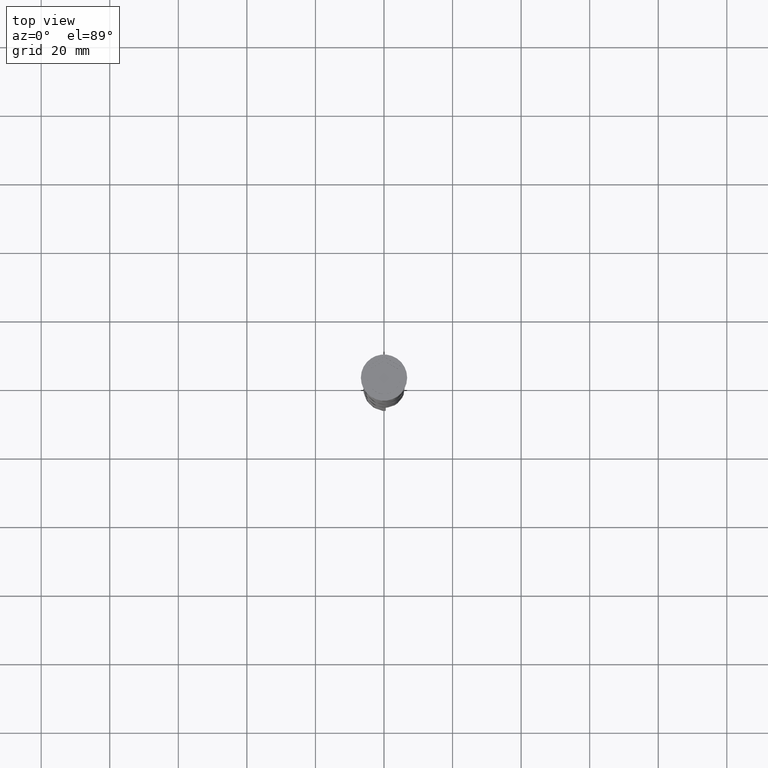
[diagram: clean part render]
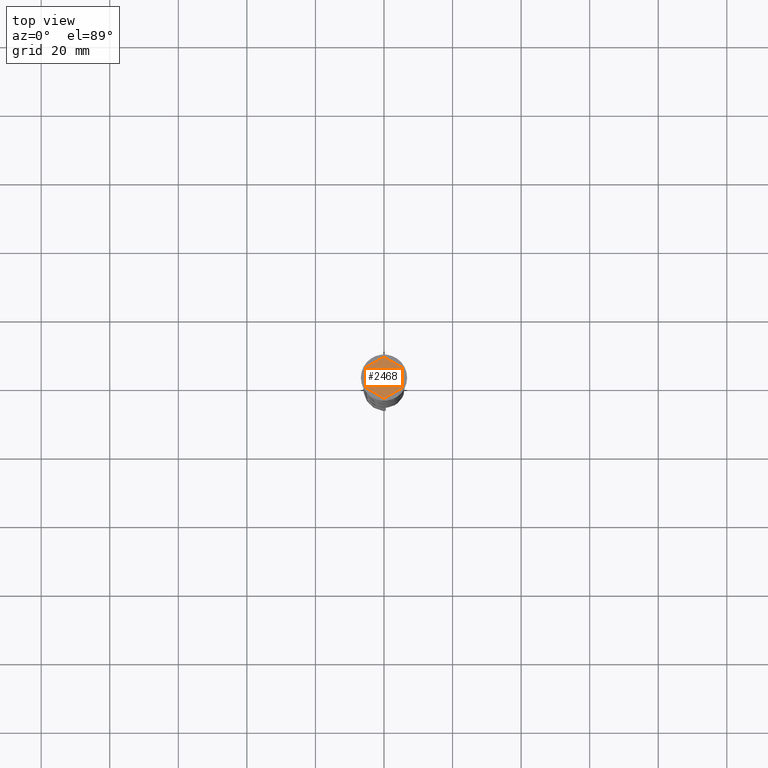
[diagram: same view with one face highlighted and labeled with its STEP entity id]
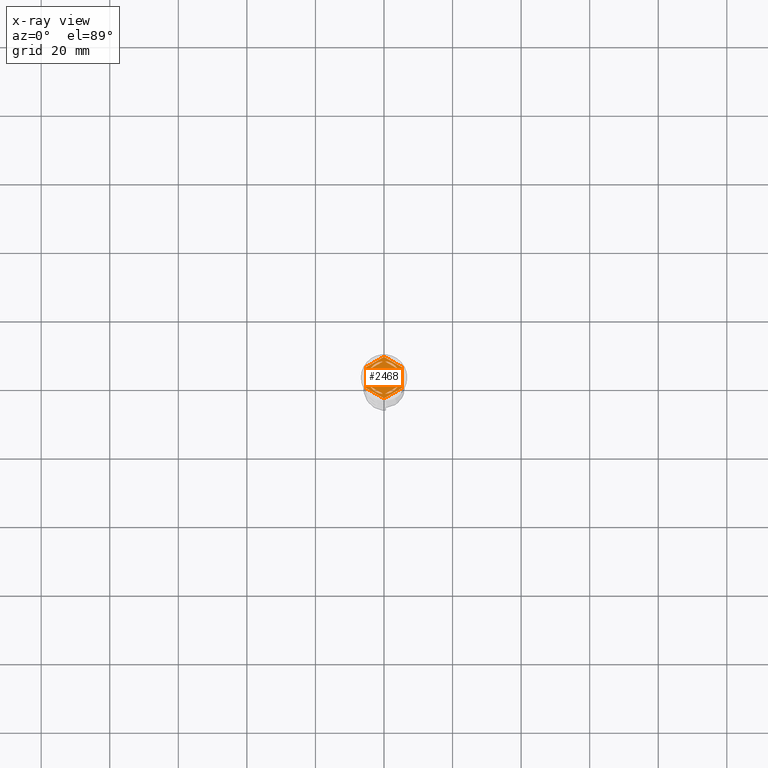
[diagram: x-ray of the same camera — body ghosted, the highlighted face saturated]
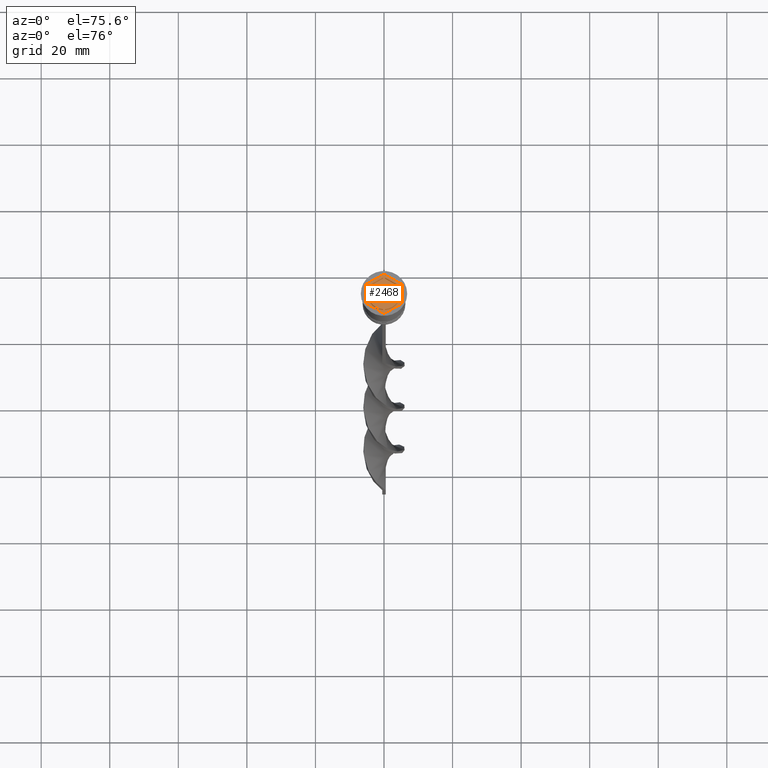
[diagram: same view with one face highlighted and labeled with its STEP entity id]
A machine part, top view. The second image highlights one B-rep face of the part: STEP entity #2468.
The next image is the same camera in x-ray: the body ghosted, the highlighted face saturated — about 0% of this face is hidden behind the body in this view.
A second angle (auxiliary view) of the same face is appended — the face is thin or edge-on in the first view.
In plain terms, the highlighted planar face has unit normal (0, 0, 1).
Its self-contained STEP definition (entity closure, byte-faithful):
#28 = DIRECTION ( 'NONE',  ( 1.000000000000000000, 0.000000000000000000, 0.000000000000000000 ) ) ;
#82 = CARTESIAN_POINT ( 'NONE',  ( 8.729740977282959667E-16, -6.062177826491071286, -1.000000000000000000 ) ) ;
#101 = DIRECTION ( 'NONE',  ( -0.8660254037844385966, 0.4999999999999998890, 0.000000000000000000 ) ) ;
#127 = FACE_BOUND ( 'NONE', #1164, .T. ) ;
#140 = VERTEX_POINT ( 'NONE', #2876 ) ;
#142 = CARTESIAN_POINT ( 'NONE',  ( -8.673617379884035472E-16, -4.907477288111819824, -1.000000000000000888 ) ) ;
#145 = EDGE_CURVE ( 'NONE', #1445, #3798, #3281, .T. ) ;
#157 = FACE_BOUND ( 'NONE', #1147, .T. ) ;
#174 = VERTEX_POINT ( 'NONE', #786 ) ;
#178 = VERTEX_POINT ( 'NONE', #3441 ) ;
#210 = EDGE_CURVE ( 'NONE', #1274, #1460, #2585, .T. ) ;
#228 = VECTOR ( 'NONE', #573, 1000.000000000000000 ) ;
#234 = AXIS2_PLACEMENT_3D ( 'NONE', #3110, #428, #2804 ) ;
#247 = EDGE_CURVE ( 'NONE', #1434, #1192, #666, .T. ) ;
#254 = EDGE_LOOP ( 'NONE', ( #3335, #1889 ) ) ;
#293 = VECTOR ( 'NONE', #2788, 1000.000000000000000 ) ;
#309 = ORIENTED_EDGE ( 'NONE', *, *, #2842, .F. ) ;
#312 = ORIENTED_EDGE ( 'NONE', *, *, #3673, .T. ) ;
#320 = CARTESIAN_POINT ( 'NONE',  ( 0.000000000000000000, 6.062177826491072175, -1.000000000000000000 ) ) ;
#353 = CARTESIAN_POINT ( 'NONE',  ( 0.2878826929126150347, -4.741268137863686505, -1.000000000000000888 ) ) ;
#394 = ORIENTED_EDGE ( 'NONE', *, *, #856, .T. ) ;
#401 = CARTESIAN_POINT ( 'NONE',  ( 0.000000000000000000, 0.000000000000000000, -1.000000000000000000 ) ) ;
#410 = CIRCLE ( 'NONE', #3600, 4.750000000000000888 ) ;
#416 = EDGE_CURVE ( 'NONE', #515, #2956, #2086, .T. ) ;
#428 = DIRECTION ( 'NONE',  ( 0.000000000000000000, 0.000000000000000000, 1.000000000000000000 ) ) ;
#476 = LINE ( 'NONE', #2161, #1514 ) ;
#486 = LINE ( 'NONE', #142, #293 ) ;
#492 = CARTESIAN_POINT ( 'NONE',  ( 0.000000000000000000, 6.062177826491072175, -1.000000000000000000 ) ) ;
#515 = VERTEX_POINT ( 'NONE', #2039 ) ;
#566 = VERTEX_POINT ( 'NONE', #2481 ) ;
#573 = DIRECTION ( 'NONE',  ( -0.8660254037844385966, 0.5000000000000001110, 0.000000000000000000 ) ) ;
#590 = DIRECTION ( 'NONE',  ( -1.767428939690775055E-16, -1.000000000000000000, 0.000000000000000000 ) ) ;
#606 = ORIENTED_EDGE ( 'NONE', *, *, #416, .T. ) ;
#666 = CIRCLE ( 'NONE', #2973, 4.750000000000000888 ) ;
#668 = EDGE_CURVE ( 'NONE', #2956, #1262, #476, .T. ) ;
#669 = ORIENTED_EDGE ( 'NONE', *, *, #1426, .F. ) ;
#729 = AXIS2_PLACEMENT_3D ( 'NONE', #3501, #2934, #2952 ) ;
#772 = AXIS2_PLACEMENT_3D ( 'NONE', #932, #2653, #28 ) ;
#781 = DIRECTION ( 'NONE',  ( 1.000000000000000000, 0.000000000000000000, 0.000000000000000000 ) ) ;
#786 = CARTESIAN_POINT ( 'NONE',  ( 0.2878826929126145906, 4.741268137863685617, -1.000000000000000888 ) ) ;
#826 = DIRECTION ( 'NONE',  ( 0.000000000000000000, -1.000000000000000000, 0.000000000000000000 ) ) ;
#856 = EDGE_CURVE ( 'NONE', #140, #566, #3711, .T. ) ;
#900 = CIRCLE ( 'NONE', #772, 4.750000000000000888 ) ;
#902 = VERTEX_POINT ( 'NONE', #3551 ) ;
#932 = CARTESIAN_POINT ( 'NONE',  ( 0.000000000000000000, 0.000000000000000000, -1.000000000000000000 ) ) ;
#966 = AXIS2_PLACEMENT_3D ( 'NONE', #1650, #2504, #781 ) ;
#991 = DIRECTION ( 'NONE',  ( 0.000000000000000000, 0.000000000000000000, 1.000000000000000000 ) ) ;
#1029 = VECTOR ( 'NONE', #1073, 1000.000000000000000 ) ;
#1033 = CARTESIAN_POINT ( 'NONE',  ( 0.000000000000000000, 0.000000000000000000, -1.000000000000000000 ) ) ;
#1055 = LINE ( 'NONE', #492, #2316 ) ;
#1073 = DIRECTION ( 'NONE',  ( 0.8660254037844387076, -0.4999999999999998335, 0.000000000000000000 ) ) ;
#1075 = CARTESIAN_POINT ( 'NONE',  ( 0.000000000000000000, 0.000000000000000000, -1.000000000000000000 ) ) ;
#1089 = LINE ( 'NONE', #3382, #1651 ) ;
#1097 = DIRECTION ( 'NONE',  ( 0.000000000000000000, 0.000000000000000000, 1.000000000000000000 ) ) ;
#1140 = EDGE_LOOP ( 'NONE', ( #669, #1284, #309 ) ) ;
#1147 = EDGE_LOOP ( 'NONE', ( #2290, #2116 ) ) ;
#1155 = DIRECTION ( 'NONE',  ( 1.000000000000000000, 0.000000000000000000, 0.000000000000000000 ) ) ;
#1164 = EDGE_LOOP ( 'NONE', ( #2839, #1805 ) ) ;
#1168 = CARTESIAN_POINT ( 'NONE',  ( 4.249999999999999112, 2.121320343559644162, -1.000000000000000888 ) ) ;
#1173 = DIRECTION ( 'NONE',  ( 0.000000000000000000, 1.000000000000000000, 0.000000000000000000 ) ) ;
#1192 = VERTEX_POINT ( 'NONE', #2016 ) ;
#1262 = VERTEX_POINT ( 'NONE', #320 ) ;
#1274 = VERTEX_POINT ( 'NONE', #1450 ) ;
#1284 = ORIENTED_EDGE ( 'NONE', *, *, #1312, .F. ) ;
#1299 = FACE_BOUND ( 'NONE', #254, .T. ) ;
#1304 = DIRECTION ( 'NONE',  ( 0.000000000000000000, 0.000000000000000000, 1.000000000000000000 ) ) ;
#1312 = EDGE_CURVE ( 'NONE', #1830, #1632, #1840, .T. ) ;
#1333 = CARTESIAN_POINT ( 'NONE',  ( 4.249999999999999112, -2.121320343559645938, -1.000000000000000888 ) ) ;
#1368 = CARTESIAN_POINT ( 'NONE',  ( 5.250000000000000888, 3.031088913245536087, -1.000000000000000000 ) ) ;
#1391 = CIRCLE ( 'NONE', #966, 4.750000000000000888 ) ;
#1400 = CARTESIAN_POINT ( 'NONE',  ( -0.2878826929126160894, 4.741268137863686505, -1.000000000000000888 ) ) ;
#1418 = DIRECTION ( 'NONE',  ( -0.8660254037844385966, -0.5000000000000000000, 0.000000000000000000 ) ) ;
#1426 = EDGE_CURVE ( 'NONE', #1632, #902, #900, .T. ) ;
#1434 = VERTEX_POINT ( 'NONE', #353 ) ;
#1445 = VERTEX_POINT ( 'NONE', #1333 ) ;
#1450 = CARTESIAN_POINT ( 'NONE',  ( -0.2878826929126160894, -4.741268137863686505, -1.000000000000000888 ) ) ;
#1460 = VERTEX_POINT ( 'NONE', #3462 ) ;
#1490 = EDGE_CURVE ( 'NONE', #174, #3001, #3686, .T. ) ;
#1507 = EDGE_LOOP ( 'NONE', ( #1985, #3185 ) ) ;
#1514 = VECTOR ( 'NONE', #101, 1000.000000000000227 ) ;
#1546 = CARTESIAN_POINT ( 'NONE',  ( 4.336808689942017736E-16, 4.907477288111819824, -1.000000000000000888 ) ) ;
#1570 = EDGE_LOOP ( 'NONE', ( #3304, #2756 ) ) ;
#1619 = FACE_BOUND ( 'NONE', #1570, .T. ) ;
#1632 = VERTEX_POINT ( 'NONE', #3565 ) ;
#1635 = FACE_OUTER_BOUND ( 'NONE', #1719, .T. ) ;
#1650 = CARTESIAN_POINT ( 'NONE',  ( 0.000000000000000000, 0.000000000000000000, -1.000000000000000000 ) ) ;
#1651 = VECTOR ( 'NONE', #1726, 1000.000000000000000 ) ;
#1702 = EDGE_CURVE ( 'NONE', #1460, #1274, #1391, .T. ) ;
#1719 = EDGE_LOOP ( 'NONE', ( #3033, #1735, #394, #312, #3511, #606 ) ) ;
#1726 = DIRECTION ( 'NONE',  ( 0.8660254037844387076, -0.4999999999999998335, 0.000000000000000000 ) ) ;
#1727 = EDGE_CURVE ( 'NONE', #3001, #174, #410, .T. ) ;
#1731 = CARTESIAN_POINT ( 'NONE',  ( -4.250000000000000000, -2.453738644055909912, -1.000000000000000888 ) ) ;
#1735 = ORIENTED_EDGE ( 'NONE', *, *, #3553, .T. ) ;
#1805 = ORIENTED_EDGE ( 'NONE', *, *, #1490, .F. ) ;
#1829 = LINE ( 'NONE', #1546, #3410 ) ;
#1830 = VERTEX_POINT ( 'NONE', #2008 ) ;
#1840 = LINE ( 'NONE', #2098, #2425 ) ;
#1889 = ORIENTED_EDGE ( 'NONE', *, *, #210, .F. ) ;
#1985 = ORIENTED_EDGE ( 'NONE', *, *, #145, .F. ) ;
#2002 = VECTOR ( 'NONE', #590, 1000.000000000000000 ) ;
#2005 = CARTESIAN_POINT ( 'NONE',  ( 0.000000000000000000, 0.000000000000000000, -1.000000000000000000 ) ) ;
#2008 = CARTESIAN_POINT ( 'NONE',  ( -4.250000000000000000, -2.121320343559643717, -1.000000000000000888 ) ) ;
#2016 = CARTESIAN_POINT ( 'NONE',  ( 3.962117307087384521, -2.619947794304042787, -1.000000000000000888 ) ) ;
#2039 = CARTESIAN_POINT ( 'NONE',  ( 5.250000000000000888, -3.031088913245536087, -1.000000000000000000 ) ) ;
#2071 = DIRECTION ( 'NONE',  ( 0.8660254037844385966, 0.5000000000000001110, -0.000000000000000000 ) ) ;
#2086 = LINE ( 'NONE', #3275, #2125 ) ;
#2090 = VERTEX_POINT ( 'NONE', #2338 ) ;
#2096 = EDGE_CURVE ( 'NONE', #3633, #2090, #3100, .T. ) ;
#2098 = CARTESIAN_POINT ( 'NONE',  ( -4.250000000000000000, 2.453738644055909468, -1.000000000000000888 ) ) ;
#2116 = ORIENTED_EDGE ( 'NONE', *, *, #2866, .F. ) ;
#2125 = VECTOR ( 'NONE', #1173, 1000.000000000000000 ) ;
#2161 = CARTESIAN_POINT ( 'NONE',  ( 5.250000000000000888, 3.031088913245536087, -1.000000000000000000 ) ) ;
#2179 = DIRECTION ( 'NONE',  ( 1.000000000000000000, 0.000000000000000000, 0.000000000000000000 ) ) ;
#2276 = CARTESIAN_POINT ( 'NONE',  ( 3.962117307087384521, 2.619947794304043232, -1.000000000000000888 ) ) ;
#2290 = ORIENTED_EDGE ( 'NONE', *, *, #2096, .F. ) ;
#2316 = VECTOR ( 'NONE', #1418, 1000.000000000000227 ) ;
#2338 = CARTESIAN_POINT ( 'NONE',  ( -3.962117307087385409, 2.619947794304041899, -1.000000000000000888 ) ) ;
#2374 = LINE ( 'NONE', #82, #2438 ) ;
#2425 = VECTOR ( 'NONE', #3271, 1000.000000000000000 ) ;
#2438 = VECTOR ( 'NONE', #2622, 1000.000000000000114 ) ;
#2468 = ADVANCED_FACE ( 'NONE', ( #127, #3675, #1619, #1299, #3056, #157, #1635 ), #3072, .T. ) ;
#2481 = CARTESIAN_POINT ( 'NONE',  ( -5.250000000000000888, -3.031088913245536087, -1.000000000000000000 ) ) ;
#2504 = DIRECTION ( 'NONE',  ( 0.000000000000000000, 0.000000000000000000, 1.000000000000000000 ) ) ;
#2527 = EDGE_CURVE ( 'NONE', #1192, #1434, #486, .T. ) ;
#2585 = LINE ( 'NONE', #1731, #228 ) ;
#2622 = DIRECTION ( 'NONE',  ( 0.8660254037844385966, 0.4999999999999999445, 0.000000000000000000 ) ) ;
#2653 = DIRECTION ( 'NONE',  ( 0.000000000000000000, 0.000000000000000000, 1.000000000000000000 ) ) ;
#2675 = VECTOR ( 'NONE', #826, 1000.000000000000000 ) ;
#2756 = ORIENTED_EDGE ( 'NONE', *, *, #2527, .F. ) ;
#2788 = DIRECTION ( 'NONE',  ( -0.8660254037844387076, -0.4999999999999999445, 0.000000000000000000 ) ) ;
#2804 = DIRECTION ( 'NONE',  ( 1.000000000000000000, 0.000000000000000000, -0.000000000000000000 ) ) ;
#2839 = ORIENTED_EDGE ( 'NONE', *, *, #1727, .F. ) ;
#2842 = EDGE_CURVE ( 'NONE', #902, #1830, #2986, .T. ) ;
#2861 = AXIS2_PLACEMENT_3D ( 'NONE', #1075, #3458, #1155 ) ;
#2866 = EDGE_CURVE ( 'NONE', #2090, #3633, #1829, .T. ) ;
#2876 = CARTESIAN_POINT ( 'NONE',  ( -5.250000000000000888, 3.031088913245535643, -1.000000000000000000 ) ) ;
#2934 = DIRECTION ( 'NONE',  ( 0.000000000000000000, 0.000000000000000000, 1.000000000000000000 ) ) ;
#2952 = DIRECTION ( 'NONE',  ( 1.000000000000000000, 0.000000000000000000, 0.000000000000000000 ) ) ;
#2956 = VERTEX_POINT ( 'NONE', #1368 ) ;
#2973 = AXIS2_PLACEMENT_3D ( 'NONE', #2005, #1097, #3180 ) ;
#2986 = CIRCLE ( 'NONE', #729, 4.750000000000000888 ) ;
#3001 = VERTEX_POINT ( 'NONE', #2276 ) ;
#3033 = ORIENTED_EDGE ( 'NONE', *, *, #668, .T. ) ;
#3035 = DIRECTION ( 'NONE',  ( 1.000000000000000000, 0.000000000000000000, 0.000000000000000000 ) ) ;
#3056 = FACE_BOUND ( 'NONE', #1140, .T. ) ;
#3072 = PLANE ( 'NONE',  #234 ) ;
#3100 = CIRCLE ( 'NONE', #3166, 4.750000000000000888 ) ;
#3110 = CARTESIAN_POINT ( 'NONE',  ( 0.000000000000000000, 0.000000000000000000, -1.000000000000000000 ) ) ;
#3166 = AXIS2_PLACEMENT_3D ( 'NONE', #401, #991, #2179 ) ;
#3180 = DIRECTION ( 'NONE',  ( 1.000000000000000000, 0.000000000000000000, 0.000000000000000000 ) ) ;
#3185 = ORIENTED_EDGE ( 'NONE', *, *, #3266, .F. ) ;
#3214 = CARTESIAN_POINT ( 'NONE',  ( 4.249999999999999112, -2.453738644055910356, -1.000000000000000888 ) ) ;
#3217 = EDGE_CURVE ( 'NONE', #178, #515, #2374, .T. ) ;
#3266 = EDGE_CURVE ( 'NONE', #3798, #1445, #3543, .T. ) ;
#3271 = DIRECTION ( 'NONE',  ( 0.000000000000000000, 1.000000000000000000, 0.000000000000000000 ) ) ;
#3275 = CARTESIAN_POINT ( 'NONE',  ( 5.250000000000000888, -3.031088913245536087, -1.000000000000000000 ) ) ;
#3281 = CIRCLE ( 'NONE', #2861, 4.750000000000000888 ) ;
#3304 = ORIENTED_EDGE ( 'NONE', *, *, #247, .F. ) ;
#3335 = ORIENTED_EDGE ( 'NONE', *, *, #1702, .F. ) ;
#3382 = CARTESIAN_POINT ( 'NONE',  ( -5.250000000000000888, -3.031088913245536087, -1.000000000000000000 ) ) ;
#3385 = CARTESIAN_POINT ( 'NONE',  ( 4.250000000000000000, 2.453738644055910800, -1.000000000000000888 ) ) ;
#3410 = VECTOR ( 'NONE', #2071, 1000.000000000000000 ) ;
#3441 = CARTESIAN_POINT ( 'NONE',  ( 8.729740977282959667E-16, -6.062177826491071286, -1.000000000000000000 ) ) ;
#3458 = DIRECTION ( 'NONE',  ( 0.000000000000000000, 0.000000000000000000, 1.000000000000000000 ) ) ;
#3462 = CARTESIAN_POINT ( 'NONE',  ( -3.962117307087385409, -2.619947794304041899, -1.000000000000000888 ) ) ;
#3501 = CARTESIAN_POINT ( 'NONE',  ( 0.000000000000000000, 0.000000000000000000, -1.000000000000000000 ) ) ;
#3511 = ORIENTED_EDGE ( 'NONE', *, *, #3217, .T. ) ;
#3543 = LINE ( 'NONE', #3214, #2002 ) ;
#3551 = CARTESIAN_POINT ( 'NONE',  ( -4.750000000000000888, 0.000000000000000000, -1.000000000000000000 ) ) ;
#3553 = EDGE_CURVE ( 'NONE', #1262, #140, #1055, .T. ) ;
#3565 = CARTESIAN_POINT ( 'NONE',  ( -4.250000000000000000, 2.121320343559643717, -1.000000000000000888 ) ) ;
#3600 = AXIS2_PLACEMENT_3D ( 'NONE', #1033, #1304, #3035 ) ;
#3633 = VERTEX_POINT ( 'NONE', #1400 ) ;
#3673 = EDGE_CURVE ( 'NONE', #566, #178, #1089, .T. ) ;
#3675 = FACE_BOUND ( 'NONE', #1507, .T. ) ;
#3686 = LINE ( 'NONE', #3385, #1029 ) ;
#3711 = LINE ( 'NONE', #3754, #2675 ) ;
#3754 = CARTESIAN_POINT ( 'NONE',  ( -5.250000000000000888, 3.031088913245535643, -1.000000000000000000 ) ) ;
#3798 = VERTEX_POINT ( 'NONE', #1168 ) ;